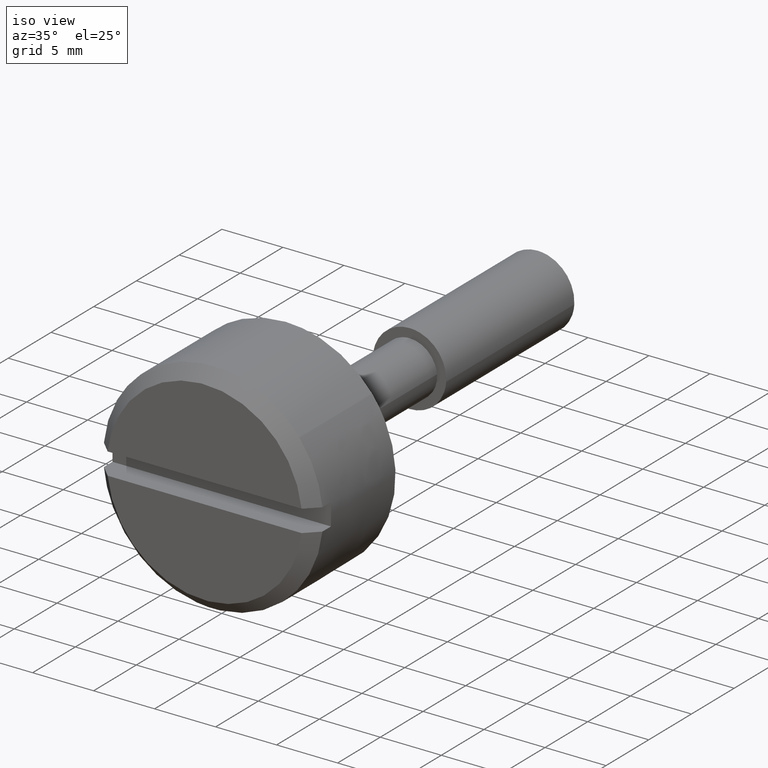
[diagram: clean part render]
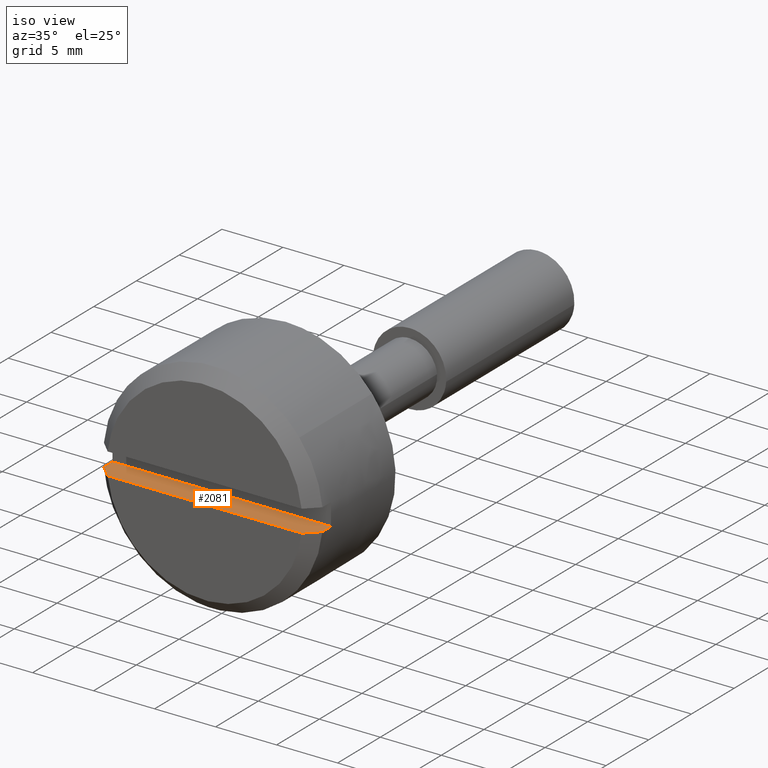
[diagram: same view with one face highlighted and labeled with its STEP entity id]
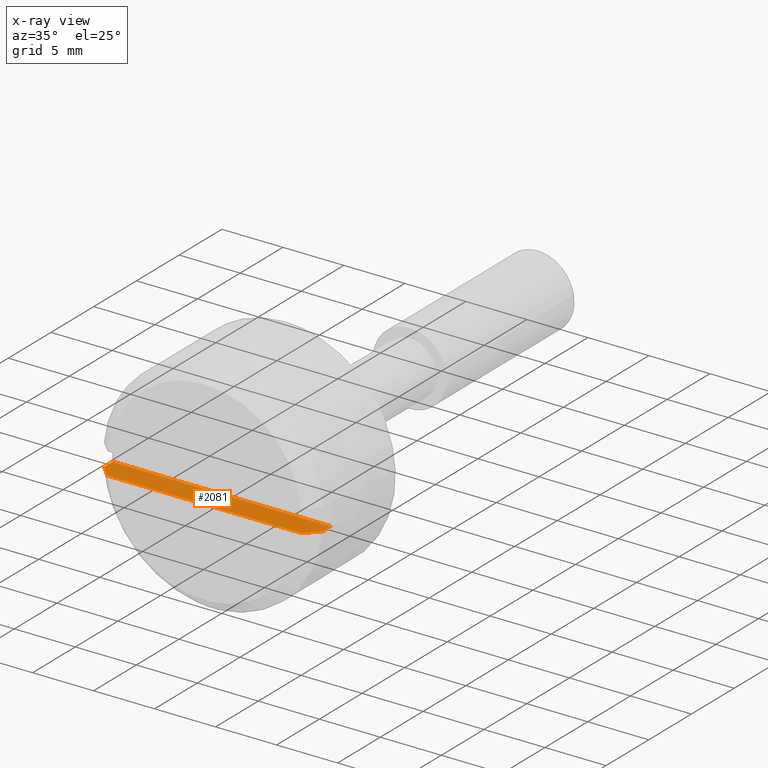
[diagram: x-ray of the same camera — body ghosted, the highlighted face saturated]
A machine part, iso view. The second image highlights one B-rep face of the part: STEP entity #2081.
The next image is the same camera in x-ray: the body ghosted, the highlighted face saturated — about 0% of this face is hidden behind the body in this view.
In plain terms, the highlighted face is a freeform B-spline surface patch.
Its self-contained STEP definition (entity closure, byte-faithful):
#1831=CARTESIAN_POINT('',(-10.0,-8.954886933959628,-0.900000000000000));
#1832=VERTEX_POINT('',#1831);
#1846=CARTESIAN_POINT('',(-10.999900000000000,-8.954886933959578,-0.900000000000000));
#1847=VERTEX_POINT('',#1846);
#1848=CARTESIAN_POINT('',(-10.0,-8.954886933959628,-0.900000000000000));
#1849=CARTESIAN_POINT('',(-10.999900000000000,-8.954886933959578,-0.900000000000000));
#1850=QUASI_UNIFORM_CURVE('',1,(#1848,#1849),.UNSPECIFIED.,.F.,.U.);
#1851=EDGE_CURVE('',#1832,#1847,#1850,.T.);
#1853=CARTESIAN_POINT('',(-10.999900000000000,8.954886933959578,-0.900000000000000));
#1854=VERTEX_POINT('',#1853);
#1870=CARTESIAN_POINT('',(-10.0,8.954886933959628,-0.900000000000000));
#1871=VERTEX_POINT('',#1870);
#1872=CARTESIAN_POINT('',(-10.999900000000000,8.954886933959578,-0.900000000000000));
#1873=CARTESIAN_POINT('',(-10.0,8.954886933959628,-0.900000000000000));
#1874=QUASI_UNIFORM_CURVE('',1,(#1872,#1873),.UNSPECIFIED.,.F.,.U.);
#1875=EDGE_CURVE('',#1854,#1871,#1874,.T.);
#2044=CARTESIAN_POINT('',(-12.099794869708390,-9.849480608322006,-0.900000000000000));
#2045=CARTESIAN_POINT('',(-9.900104951486613,-9.849480608322006,-0.900000000000000));
#2046=CARTESIAN_POINT('',(-12.099794869708390,9.849480608322004,-0.900000000000000));
#2047=CARTESIAN_POINT('',(-9.900104951486613,9.849480608322004,-0.900000000000000));
#2048=B_SPLINE_SURFACE_WITH_KNOTS('',1,1,((#2044,#2046),(#2045,#2047)),.UNSPECIFIED.,.F.,.F.,.U.,(2,2),(2,2),(0.0,2.199689918221781),(0.0,19.698961216644008),.UNSPECIFIED.);
#2049=CARTESIAN_POINT('',(-10.0,8.954886933959628,-0.900000000000000));
#2050=CARTESIAN_POINT('',(-10.0,-8.954886933959628,-0.900000000000000));
#2051=QUASI_UNIFORM_CURVE('',1,(#2049,#2050),.UNSPECIFIED.,.F.,.U.);
#2052=EDGE_CURVE('',#1871,#1832,#2051,.T.);
#2053=ORIENTED_EDGE('',*,*,#2052,.F.);
#2054=ORIENTED_EDGE('',*,*,#1875,.F.);
#2055=CARTESIAN_POINT('',(-11.999900000000000,7.949213797602840,-0.900000000000000));
#2056=VERTEX_POINT('',#2055);
#2057=CARTESIAN_POINT('',(-11.999900000000000,7.949213797602840,-0.900000000000000));
#2058=CARTESIAN_POINT('',(-11.666687995180000,8.284558379157989,-0.900000000000000));
#2059=CARTESIAN_POINT('',(-11.333336515864641,8.619764780328605,-0.900000000000000));
#2060=CARTESIAN_POINT('',(-10.999900000000000,8.954886933959578,-0.900000000000000));
#2061=B_SPLINE_CURVE_WITH_KNOTS('',3,(#2057,#2058,#2059,#2060),.UNSPECIFIED.,.F.,.U.,(4,4),(0.941397994252912,1.0),.UNSPECIFIED.);
#2062=EDGE_CURVE('',#2056,#1854,#2061,.T.);
#2063=ORIENTED_EDGE('',*,*,#2062,.F.);
#2064=CARTESIAN_POINT('',(-11.999900000000000,-7.949213797602840,-0.900000000000000));
#2065=VERTEX_POINT('',#2064);
#2066=CARTESIAN_POINT('',(-11.999900000000000,7.949213797602840,-0.900000000000000));
#2067=CARTESIAN_POINT('',(-11.999900000000000,-7.949213797602840,-0.900000000000000));
#2068=QUASI_UNIFORM_CURVE('',1,(#2066,#2067),.UNSPECIFIED.,.F.,.U.);
#2069=EDGE_CURVE('',#2056,#2065,#2068,.T.);
#2070=ORIENTED_EDGE('',*,*,#2069,.T.);
#2071=CARTESIAN_POINT('',(-10.999900000000000,-8.954886933959578,-0.900000000000000));
#2072=CARTESIAN_POINT('',(-11.333336230118860,-8.619764833145828,-0.900000000000000));
#2073=CARTESIAN_POINT('',(-11.666687782598601,-8.284558563938044,-0.900000000000000));
#2074=CARTESIAN_POINT('',(-11.999900000000000,-7.949213797602840,-0.900000000000000));
#2075=B_SPLINE_CURVE_WITH_KNOTS('',3,(#2071,#2072,#2073,#2074),.UNSPECIFIED.,.F.,.U.,(4,4),(0.0,0.058078857996080),.UNSPECIFIED.);
#2076=EDGE_CURVE('',#1847,#2065,#2075,.T.);
#2077=ORIENTED_EDGE('',*,*,#2076,.F.);
#2078=ORIENTED_EDGE('',*,*,#1851,.F.);
#2079=EDGE_LOOP('',(#2053,#2054,#2063,#2070,#2077,#2078));
#2080=FACE_OUTER_BOUND('',#2079,.T.);
#2081=ADVANCED_FACE('',(#2080),#2048,.T.);